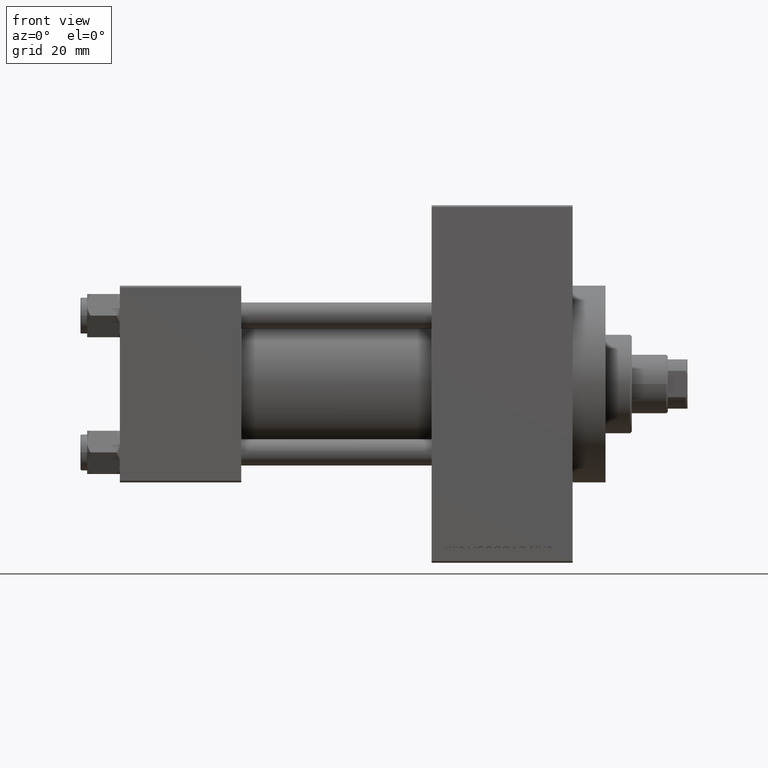
[diagram: clean part render]
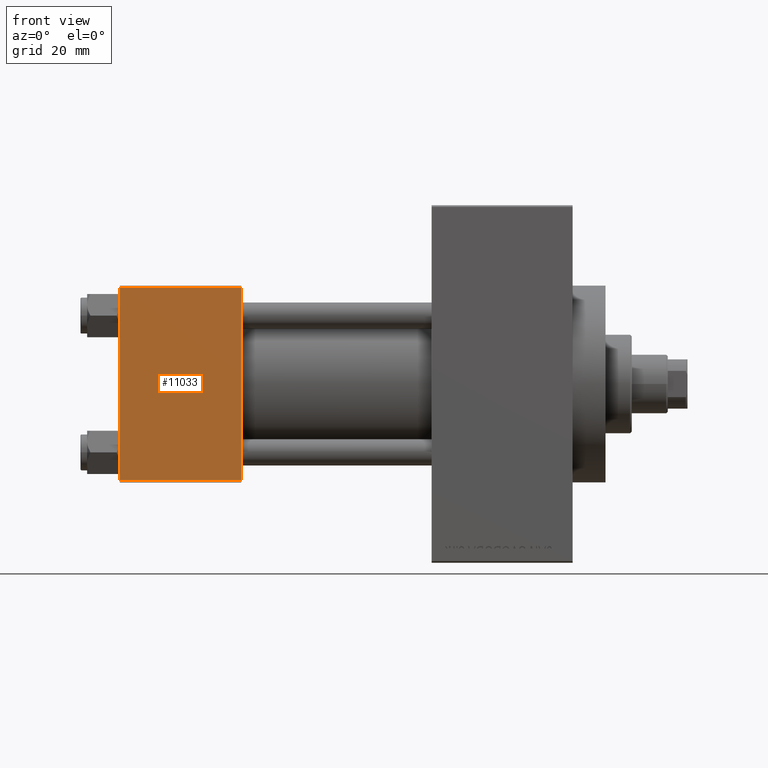
[diagram: same view with one face highlighted and labeled with its STEP entity id]
A machine part, front view. The second image highlights one B-rep face of the part: STEP entity #11033.
In plain terms, the highlighted planar face has unit normal (0, 1, 0).
Its self-contained STEP definition (entity closure, byte-faithful):
#432 = VERTEX_POINT ( 'NONE', #3669 ) ;
#1787 = FACE_OUTER_BOUND ( 'NONE', #14768, .T. ) ;
#3669 = CARTESIAN_POINT ( 'NONE',  ( 37.00000000000000000, -30.00000000000000000, 29.49999999999999289 ) ) ;
#8015 = VECTOR ( 'NONE', #16764, 1000.000000000000000 ) ;
#8579 = EDGE_CURVE ( 'NONE', #39082, #27295, #20120, .T. ) ;
#9676 = DIRECTION ( 'NONE',  ( -1.000000000000000000, 0.000000000000000000, 0.000000000000000000 ) ) ;
#11033 = ADVANCED_FACE ( 'NONE', ( #1787 ), #42338, .F. ) ;
#11839 = DIRECTION ( 'NONE',  ( 0.000000000000000000, 0.000000000000000000, -1.000000000000000000 ) ) ;
#12165 = CARTESIAN_POINT ( 'NONE',  ( 37.00000000000000000, -30.00000000000000000, -29.50000000000001776 ) ) ;
#12295 = EDGE_CURVE ( 'NONE', #432, #27295, #44718, .T. ) ;
#12790 = CARTESIAN_POINT ( 'NONE',  ( 37.00000000000000000, -30.00000000000000000, 29.49999999999999289 ) ) ;
#12833 = VECTOR ( 'NONE', #9676, 1000.000000000000000 ) ;
#14768 = EDGE_LOOP ( 'NONE', ( #44904, #29386, #21547, #44962 ) ) ;
#16052 = CARTESIAN_POINT ( 'NONE',  ( 37.00000000000000000, -30.00000000000000000, -29.50000000000001776 ) ) ;
#16428 = CARTESIAN_POINT ( 'NONE',  ( 37.00000000000000000, -30.00000000000000000, 29.99999999999999289 ) ) ;
#16764 = DIRECTION ( 'NONE',  ( 1.000000000000000000, 0.000000000000000000, 0.000000000000000000 ) ) ;
#18619 = DIRECTION ( 'NONE',  ( 0.000000000000000000, 0.000000000000000000, -1.000000000000000000 ) ) ;
#18865 = EDGE_CURVE ( 'NONE', #432, #40542, #46384, .T. ) ;
#19408 = EDGE_CURVE ( 'NONE', #40542, #39082, #22694, .T. ) ;
#19655 = VECTOR ( 'NONE', #11839, 1000.000000000000000 ) ;
#20120 = LINE ( 'NONE', #16052, #8015 ) ;
#21547 = ORIENTED_EDGE ( 'NONE', *, *, #12295, .F. ) ;
#22694 = LINE ( 'NONE', #40472, #46552 ) ;
#26754 = DIRECTION ( 'NONE',  ( -0.000000000000000000, 1.000000000000000000, 0.000000000000000000 ) ) ;
#27295 = VERTEX_POINT ( 'NONE', #12165 ) ;
#29386 = ORIENTED_EDGE ( 'NONE', *, *, #8579, .T. ) ;
#29547 = AXIS2_PLACEMENT_3D ( 'NONE', #16428, #26754, #34660 ) ;
#34660 = DIRECTION ( 'NONE',  ( 0.000000000000000000, -0.000000000000000000, 1.000000000000000000 ) ) ;
#39082 = VERTEX_POINT ( 'NONE', #42526 ) ;
#40472 = CARTESIAN_POINT ( 'NONE',  ( 0.000000000000000000, -30.00000000000000000, 29.99999999999999289 ) ) ;
#40542 = VERTEX_POINT ( 'NONE', #44294 ) ;
#41840 = CARTESIAN_POINT ( 'NONE',  ( 37.00000000000000000, -30.00000000000000000, 29.99999999999999289 ) ) ;
#42338 = PLANE ( 'NONE',  #29547 ) ;
#42526 = CARTESIAN_POINT ( 'NONE',  ( 0.000000000000000000, -30.00000000000000000, -29.50000000000001776 ) ) ;
#44294 = CARTESIAN_POINT ( 'NONE',  ( 0.000000000000000000, -30.00000000000000000, 29.49999999999999289 ) ) ;
#44718 = LINE ( 'NONE', #41840, #19655 ) ;
#44904 = ORIENTED_EDGE ( 'NONE', *, *, #19408, .T. ) ;
#44962 = ORIENTED_EDGE ( 'NONE', *, *, #18865, .T. ) ;
#46384 = LINE ( 'NONE', #12790, #12833 ) ;
#46552 = VECTOR ( 'NONE', #18619, 1000.000000000000000 ) ;